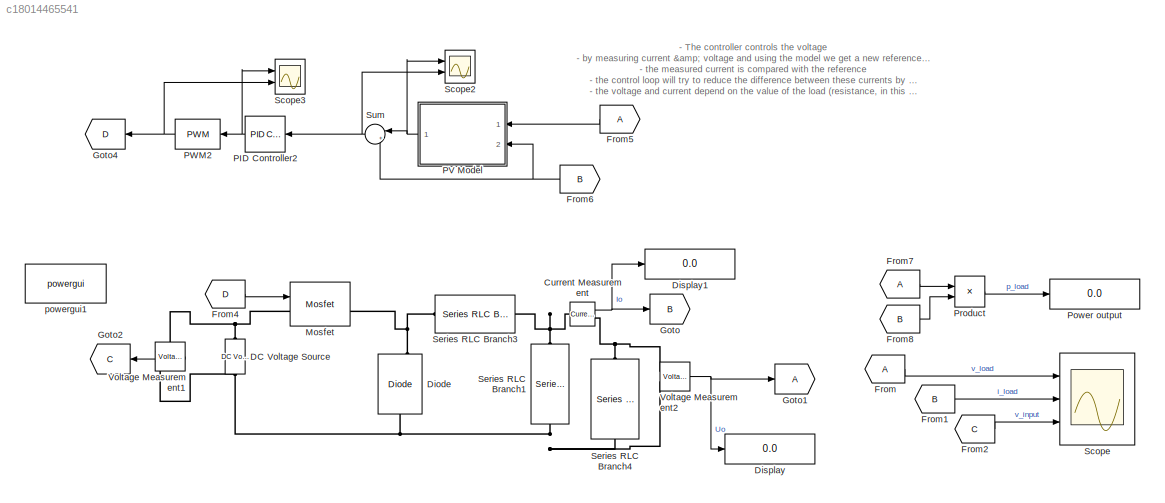
MODEL slx_c18014465541
KIND model
CONFIG AbsTol = auto
CONFIG EnableMultiTasking = off
CONFIG FixedStep = auto
CONFIG MaxStep = auto
CONFIG MinStep = auto
CONFIG RelTol = 1e-3
CONFIG SampleTimeConstraint = Unconstrained
CONFIG SolverName = VariableStepAuto
CONFIG StartTime = 0.0
CONFIG StopTime = 3
BLOCK [Reference] Current Measurement  REF=powerlib/Measurements/Current Measurement
  Ports = [0, 1, 0, 0, 0, 1, 1]
  SourceBlock = powerlib/Measurements/Current Measurement
  SourceProductBaseCode = PS
  SourceType = Current Measurement
  UserDataPersistent = on
BLOCK [Reference] DC Voltage Source  REF=powerlib/Electrical
Sources/DC Voltage Source
  NameLocation = right
  Ports = [0, 0, 0, 0, 0, 1, 1]
  SourceBlock = powerlib/Electrical\nSources/DC Voltage Source
  SourceProductBaseCode = PS
  SourceType = DC Voltage Source
BLOCK [Reference] Diode  REF=powerlib/Power
Electronics/Diode
  NameLocation = right
  Ports = [0, 1, 0, 0, 0, 1, 1]
  SourceBlock = powerlib/Power\nElectronics/Diode
  SourceProductBaseCode = PS
  SourceType = Diode
BLOCK [Display] Display
  Decimation = 1
  Ports = [1]
BLOCK [Display] Display1
  Decimation = 1
  Ports = [1]
BLOCK [From] From
BLOCK [From] From1
  GotoTag = B
BLOCK [From] From2
  GotoTag = C
BLOCK [From] From4
  GotoTag = D
BLOCK [From] From5
  NameLocation = top
BLOCK [From] From6
  GotoTag = B
  NameLocation = top
BLOCK [From] From7
BLOCK [From] From8
  GotoTag = B
BLOCK [Goto] Goto
  GotoTag = B
BLOCK [Goto] Goto1
BLOCK [Goto] Goto2
  GotoTag = C
  NameLocation = top
BLOCK [Goto] Goto4
  GotoTag = D
  NameLocation = top
BLOCK [Reference] Mosfet  REF=powerlib/Power
Electronics/Mosfet
  Ports = [1, 1, 0, 0, 0, 1, 1]
  SourceBlock = powerlib/Power\nElectronics/Mosfet
  SourceProductBaseCode = PS
  SourceType = Mosfet
BLOCK [Reference] PID Controller2  REF=pid_lib/PID Controller
  NameLocation = top
  Ports = [1, 1]
  SourceBlock = pid_lib/PID Controller
  SourceProductBaseCode = SL
  SourceType = PID 1dof
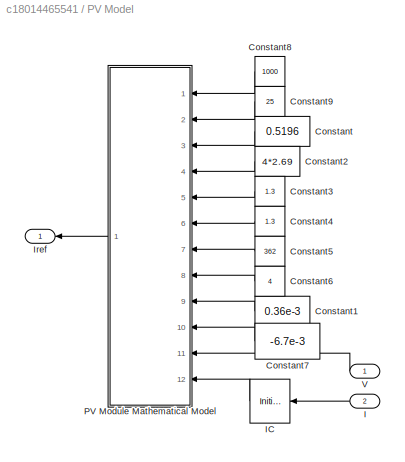
BLOCK [SubSystem] PV Model
  NameLocation = right
  Ports = [2, 1]
  RequestExecContextInheritance = off
BLOCK [Constant] PV Model/Constant
  Value = 0.5196
BLOCK [Constant] PV Model/Constant1
  Value = 0.36e-3
BLOCK [Constant] PV Model/Constant2
  Value = 4*2.69
BLOCK [Constant] PV Model/Constant3
  Value = 1.3
BLOCK [Constant] PV Model/Constant4
  Value = 1.3
BLOCK [Constant] PV Model/Constant5
  Value = 362
BLOCK [Constant] PV Model/Constant6
  Value = 4
BLOCK [Constant] PV Model/Constant7
  Value = -6.7e-3
BLOCK [Constant] PV Model/Constant8
  Value = 1000
BLOCK [Constant] PV Model/Constant9
  Value = 25
BLOCK [Inport] PV Model/I
  Port = 2
BLOCK [InitialCondition] PV Model/IC
  Value = 0
BLOCK [Outport] PV Model/Iref
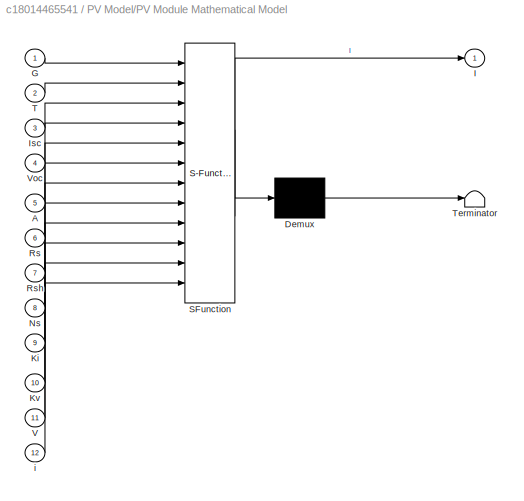
BLOCK [SubSystem] PV Model/PV Module Mathematical Model
  ErrorFcn = Stateflow.Translate.translate
  PermitHierarchicalResolution = ExplicitOnly
  Ports = [12, 1]
  RequestExecContextInheritance = off
  SFBlockType = MATLAB Function
  TreatAsAtomicUnit = on
BLOCK [Demux] PV Model/PV Module Mathematical Model/ Demux 
  Outputs = 1
  Ports = [1, 1]
BLOCK [S-Function] PV Model/PV Module Mathematical Model/ SFunction 
  EnableBusSupport = on
  FunctionName = sf_sfun
  PortCounts = [12 2]
  Ports = [12, 2]
  SFcnIsStateOwnerBlock = off
  SFunctionDeploymentMode = off
  Tag = Stateflow S-Function 1
BLOCK [Terminator] PV Model/PV Module Mathematical Model/ Terminator 
BLOCK [Inport] PV Model/PV Module Mathematical Model/A
  Port = 5
BLOCK [Inport] PV Model/PV Module Mathematical Model/G
BLOCK [Outport] PV Model/PV Module Mathematical Model/I
  VectorParamsAs1DForOutWhenUnconnected = off
BLOCK [Inport] PV Model/PV Module Mathematical Model/Isc
  Port = 3
BLOCK [Inport] PV Model/PV Module Mathematical Model/Ki
  Port = 9
BLOCK [Inport] PV Model/PV Module Mathematical Model/Kv
  Port = 10
BLOCK [Inport] PV Model/PV Module Mathematical Model/Ns
  Port = 8
BLOCK [Inport] PV Model/PV Module Mathematical Model/Rs
  Port = 6
BLOCK [Inport] PV Model/PV Module Mathematical Model/Rsh
  Port = 7
BLOCK [Inport] PV Model/PV Module Mathematical Model/T
  Port = 2
BLOCK [Inport] PV Model/PV Module Mathematical Model/V
  Port = 11
BLOCK [Inport] PV Model/PV Module Mathematical Model/Voc
  Port = 4
BLOCK [Inport] PV Model/PV Module Mathematical Model/i
  Port = 12
BLOCK [Inport] PV Model/V
BLOCK [Reference] PWM2  REF=simulink/Discontinuities/PWM
  DisableCoverage = on
  NameLocation = top
  Ports = [1, 1]
  SourceBlock = simulink/Discontinuities/PWM
  SourceProductBaseCode = SL
  SourceType = PWM
BLOCK [Display] Power output
  Decimation = 1
  Ports = [1]
BLOCK [Product] Product
  Ports = [2, 1]
BLOCK [Scope] Scope
  Floating = off
  NumInputPorts = 3
  Ports = [3]
  ScopeSpecificationString = Simulink.scopes.TimeScopeBlockCfg('CurrentConfiguration', extmgr.ConfigurationSet(extmgr.Configuration('Core','General UI',true),extmgr.Configuration('Core','Source UI',true),extmgr.Configuration('Sources','WiredSimulink',true,'DataLoggingVariableName','ScopeData1'),extmgr.Configuration('Visuals','Time Domain',true,'SerializedDisplays',{struct('MinYLimReal','-1.20872','MaxYLimReal','10.9026','YLab...<+2841ch>
BLOCK [Scope] Scope2
  Floating = off
  NumInputPorts = 2
  Ports = [2]
  ScopeSpecificationString = Simulink.scopes.TimeScopeBlockCfg('CurrentConfiguration', extmgr.ConfigurationSet(extmgr.Configuration('Core','General UI',true),extmgr.Configuration('Core','Source UI',true),extmgr.Configuration('Sources','WiredSimulink',true,'DataLoggingVariableName','ScopeData1'),extmgr.Configuration('Visuals','Time Domain',true,'SerializedDisplays',{struct('MinYLimReal','-0.07978','MaxYLimReal','0.58619','YLab...<+1471ch>
BLOCK [Scope] Scope3
  Floating = off
  NumInputPorts = 2
  Ports = [2]
  ScopeSpecificationString = Simulink.scopes.TimeScopeBlockCfg('CurrentConfiguration', extmgr.ConfigurationSet(extmgr.Configuration('Core','General UI',true),extmgr.Configuration('Core','Source UI',true),extmgr.Configuration('Sources','WiredSimulink',true,'DataLoggingVariableName','ScopeData2'),extmgr.Configuration('Visuals','Time Domain',true,'SerializedDisplays',{struct('MinYLimReal','0.14078','MaxYLimReal','0.90252','YLabe...<+2111ch>
BLOCK [Reference] Series RLC Branch1  REF=powerlib/Elements/Series RLC Branch
  NameLocation = left
  Ports = [0, 0, 0, 0, 0, 1, 1]
  SourceBlock = powerlib/Elements/Series RLC Branch
  SourceProductBaseCode = PS
  SourceType = Series RLC Branch
BLOCK [Reference] Series RLC Branch3  REF=powerlib/Elements/Series RLC Branch
  Ports = [0, 0, 0, 0, 0, 1, 1]
  SourceBlock = powerlib/Elements/Series RLC Branch
  SourceProductBaseCode = PS
  SourceType = Series RLC Branch
BLOCK [Reference] Series RLC Branch4  REF=powerlib/Elements/Series RLC Branch
  NameLocation = left
  Ports = [0, 0, 0, 0, 0, 1, 1]
  SourceBlock = powerlib/Elements/Series RLC Branch
  SourceProductBaseCode = PS
  SourceType = Series RLC Branch
BLOCK [Sum] Sum
  Inputs = |+-
  NameLocation = top
  Ports = [2, 1]
BLOCK [Reference] Voltage Measurement1  REF=powerlib/Measurements/Voltage Measurement
  NameLocation = top
  Ports = [0, 1, 0, 0, 0, 2]
  SourceBlock = powerlib/Measurements/Voltage Measurement
  SourceProductBaseCode = PS
  SourceType = Voltage Measurement
  UserDataPersistent = on
BLOCK [Reference] Voltage Measurement2  REF=powerlib/Measurements/Voltage Measurement
  Ports = [0, 1, 0, 0, 0, 2]
  SourceBlock = powerlib/Measurements/Voltage Measurement
  SourceProductBaseCode = PS
  SourceType = Voltage Measurement
  UserDataPersistent = on
BLOCK [Reference] powergui1  REF=powerlib/powergui
  Ports = []
  Priority = 1
  SourceBlock = powerlib/powergui
  SourceProductBaseCode = PS
  SourceType = PSB option menu block
ANNOTATION (root): - The controller controls the voltage - by measuring current & voltage and using the model we get a new reference current - the measured current is compared with the reference - the control loop will try to reduce the difference between these currents by changing the voltage - the voltage and current depend on the value of the load (resistance, in this case = 21.11 ohm for peak power)
NET Current Measurement:1 -> Display1:1, Goto:1
LINE From1:1 -> Scope:2
LINE From2:1 -> Scope:3
LINE From4:1 -> Mosfet:1
LINE From5:1 -> PV Model:1
NET From6:1 -> PV Model:2, Sum:2
LINE From7:1 -> Product:1
LINE From8:1 -> Product:2
LINE From:1 -> Scope:1
NET PID Controller2:1 -> PWM2:1, Scope3:1
LINE PV Model/Constant1:1 -> PV Model/PV Module Mathematical Model:9
LINE PV Model/Constant2:1 -> PV Model/PV Module Mathematical Model:4
LINE PV Model/Constant3:1 -> PV Model/PV Module Mathematical Model:5
LINE PV Model/Constant4:1 -> PV Model/PV Module Mathematical Model:6
LINE PV Model/Constant5:1 -> PV Model/PV Module Mathematical Model:7
LINE PV Model/Constant6:1 -> PV Model/PV Module Mathematical Model:8
LINE PV Model/Constant7:1 -> PV Model/PV Module Mathematical Model:10
LINE PV Model/Constant8:1 -> PV Model/PV Module Mathematical Model:1
LINE PV Model/Constant9:1 -> PV Model/PV Module Mathematical Model:2
LINE PV Model/Constant:1 -> PV Model/PV Module Mathematical Model:3
LINE PV Model/I:1 -> PV Model/IC:1
LINE PV Model/IC:1 -> PV Model/PV Module Mathematical Model:12
LINE PV Model/PV Module Mathematical Model:1 -> PV Model/Iref:1
LINE PV Model/V:1 -> PV Model/PV Module Mathematical Model:11
NET PV Model:1 -> Scope2:1, Sum:1
NET PWM2:1 -> Goto4:1, Scope3:2
LINE Product:1 -> Power output:1
NET Sum:1 -> PID Controller2:1, Scope2:2
LINE Voltage Measurement1:1 -> Goto2:1
NET Voltage Measurement2:1 -> Display:1, Goto1:1
PNET net1: Current Measurement:LConn1 -- Series RLC Branch1:LConn1 -- Series RLC Branch3:RConn1
PNET net2: Current Measurement:RConn1 -- Series RLC Branch4:LConn1 -- Voltage Measurement2:LConn1
PNET net3: DC Voltage Source:LConn1 -- Diode:LConn1 -- Series RLC Branch1:RConn1 -- Series RLC Branch4:RConn1 -- Voltage Measurement1:LConn2 -- Voltage Measurement2:LConn2
PNET net4: DC Voltage Source:RConn1 -- Mosfet:LConn1 -- Voltage Measurement1:LConn1
PNET net5: Diode:RConn1 -- Mosfet:RConn1 -- Series RLC Branch3:LConn1
note: NET lines group one-source signal fan-out (src -> all destinations, sorted); 1:1 wires keep LINE; PNET lines group multi-terminal physical nets as a canonical sorted terminal list (undirected conserving connections); 2-terminal nets keep the pairwise PLINE form
CHART PV Model/PV Module
Mathematical Model states=1 transitions=1
  STATE_LABEL 'eML_blk_kernel()'
  STATE_LABEL 'SCRIPT:\nfunction I = fcn(G,T,Isc,Voc,A,Rs,Rsh,Ns,Ki,Kv,V,i)\n    \n    q = 1.6e-19;                          % Electron charge\n    k = 1.38e-23;                         % Boltzmann constant\n    Tcell = 273+T;                        % Cell temperature in Kelvin\n    vt=(A*k*Tcell*Ns)/q;                  % Thermal voltage Equation(5)\n        \n    Isc_T = Isc+((Isc*(Ki/100))*(T-25));  % Isc temperature ...<+367ch>'
CHART  states=0 transitions=0
